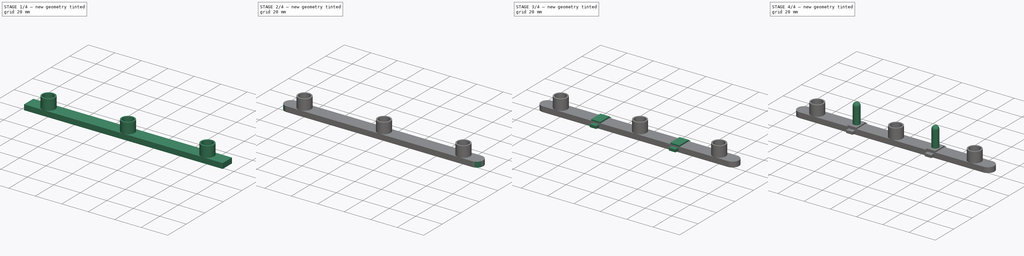
[diagram: build sequence overview — one tinted view per stage of 4, left to right]
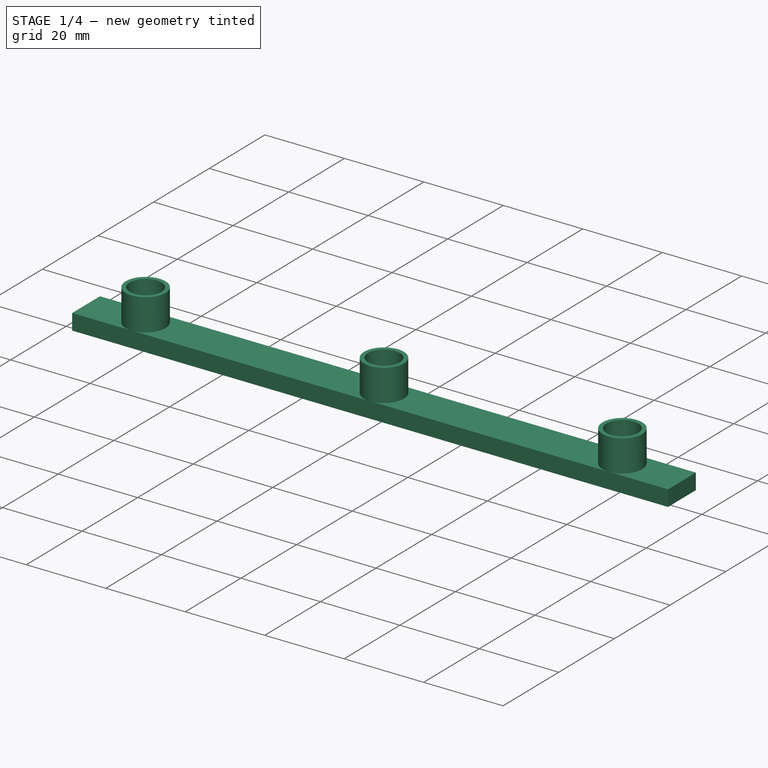
[diagram: stage 1 of 4 — iso view after this stage's code; geometry added in this stage tinted green]
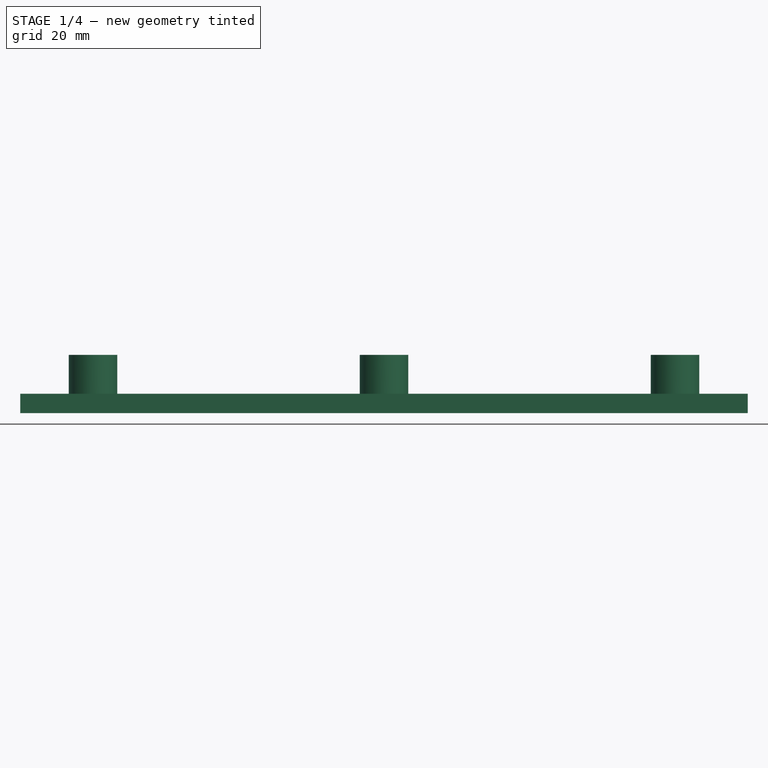
[diagram: stage 1 of 4 — front view after this stage's code; geometry added in this stage tinted green]
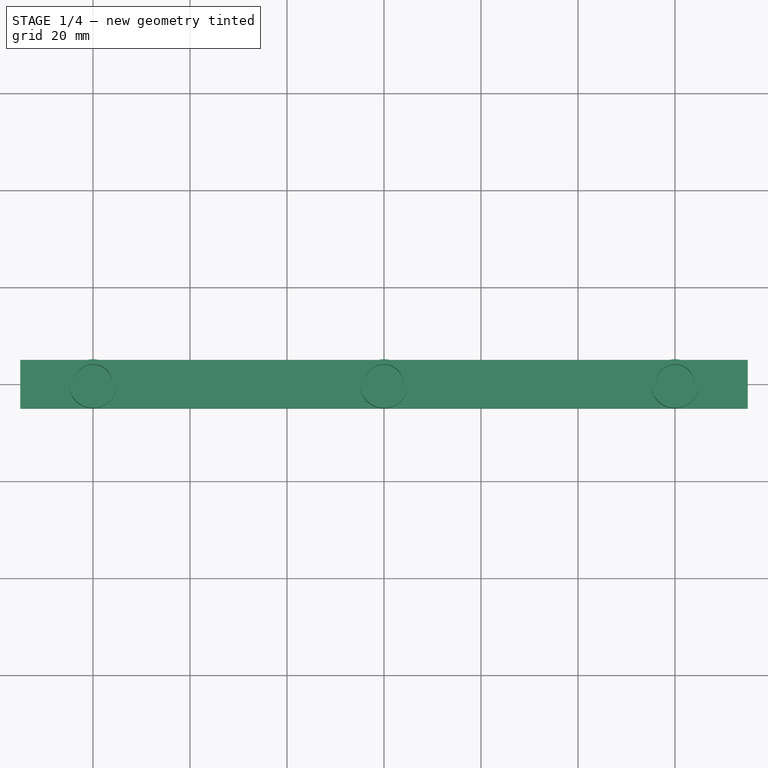
[diagram: stage 1 of 4 — top view after this stage's code; geometry added in this stage tinted green]
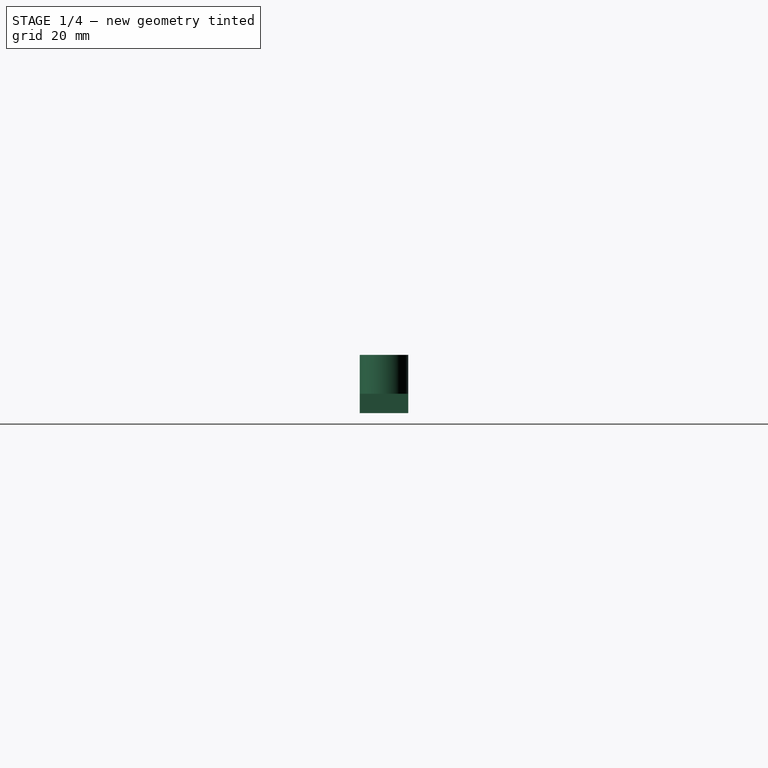
[diagram: stage 1 of 4 — right view after this stage's code; geometry added in this stage tinted green]
FCSTD DOCUMENT  (FreeCAD 0.20R29603 (Git))
Label: LaserCoolersPanel
License: All rights reserved
LicenseURL: http://en.wikipedia.org/wiki/All_rights_reserved
objects: Sketcher::SketchObject×7, PartDesign::Pad×6, PartDesign::Fillet×2, PartDesign::Pocket×1, PartDesign::Body×1
note: 26 computed .brp shape members not serialized (recipe doc carries the construction recipe); baked Part::Feature solids carry a one-line shape summary decoded from their .brp

FEATURE [Sketcher::SketchObject] Sketch
  FullyConstrained = true
  MapMode = 5
  Support = -> [XY_Plane]
  sketch-geometry (5):
    g0: LineSegment StartX=-75 StartY=5 StartZ=0 EndX=-75 EndY=-5 EndZ=0
    g1: LineSegment StartX=-75 StartY=-5 StartZ=0 EndX=75 EndY=-5 EndZ=0
    g2: LineSegment StartX=75 StartY=-5 StartZ=0 EndX=75 EndY=5 EndZ=0
    g3: LineSegment StartX=75 StartY=5 StartZ=0 EndX=-75 EndY=5 EndZ=0
    g4: GeomPoint X=0 Y=0 Z=0
  constraints (12):
    c: Coincident(g0,g1)
    c: Coincident(g1,g2)
    c: Coincident(g2,g3)
    c: Coincident(g3,g0)
    c: Horizontal(g1)
    c: Horizontal(g3)
    c: Vertical(g0)
    c: Vertical(g2)
    c: Symmetric(g1,g0,g4)
    c: Coincident(g4,g-1)
    c: DistanceX(g3,g3) = 150
    c: DistanceY(g0,g0) = 10
FEATURE [PartDesign::Pad] Pad
  Direction = (0,0,1)
  Length = 4
  Length2 = 10
  Profile = -> Sketch
  ReferenceAxis = -> Sketch [N_Axis]
  Type = 0
FEATURE [Sketcher::SketchObject] Sketch001
  FullyConstrained = true
  MapMode = 5
  Placement = pos=(0,0,4) rot=(0,0,1;0rad)
  Support = -> [Pad]
  sketch-geometry (6):
    g0: Circle CenterX=0 CenterY=0 CenterZ=0 NormalX=0 NormalY=0 NormalZ=1 AngleXU=0 Radius=5
    g1: Circle CenterX=0 CenterY=0 CenterZ=0 NormalX=0 NormalY=0 NormalZ=1 AngleXU=0 Radius=4
    g2: Circle CenterX=60 CenterY=0 CenterZ=0 NormalX=0 NormalY=0 NormalZ=1 AngleXU=0 Radius=5
    g3: Circle CenterX=60 CenterY=0 CenterZ=0 NormalX=0 NormalY=0 NormalZ=1 AngleXU=0 Radius=4
    g4: Circle CenterX=-60 CenterY=0 CenterZ=0 NormalX=0 NormalY=0 NormalZ=1 AngleXU=0 Radius=5
    g5: Circle CenterX=-60 CenterY=0 CenterZ=0 NormalX=0 NormalY=0 NormalZ=1 AngleXU=0 Radius=4
  constraints (13):
    c: Coincident(g0,g-1)
    c: Coincident(g1,g0)
    c: Coincident(g3,g2)
    c: PointOnObject(g4,g-1)
    c: Coincident(g5,g4)
    c: Symmetric(g2,g4,g-2)
    c: Equal(g4,g2)
    c: Equal(g2,g0)
    c: Diameter(g0) = 10
    c: Equal(g5,g1)
    c: Equal(g1,g3)
    c: Diameter(g1) = 8
    c: DistanceX(g4,g0) = 60
FEATURE [PartDesign::Pad] Pad001
  BaseFeature = -> Pad
  Direction = (0,0,1)
  Length = 8
  Length2 = 10
  Profile = -> Sketch001
  ReferenceAxis = -> Sketch001 [N_Axis]
  Type = 0
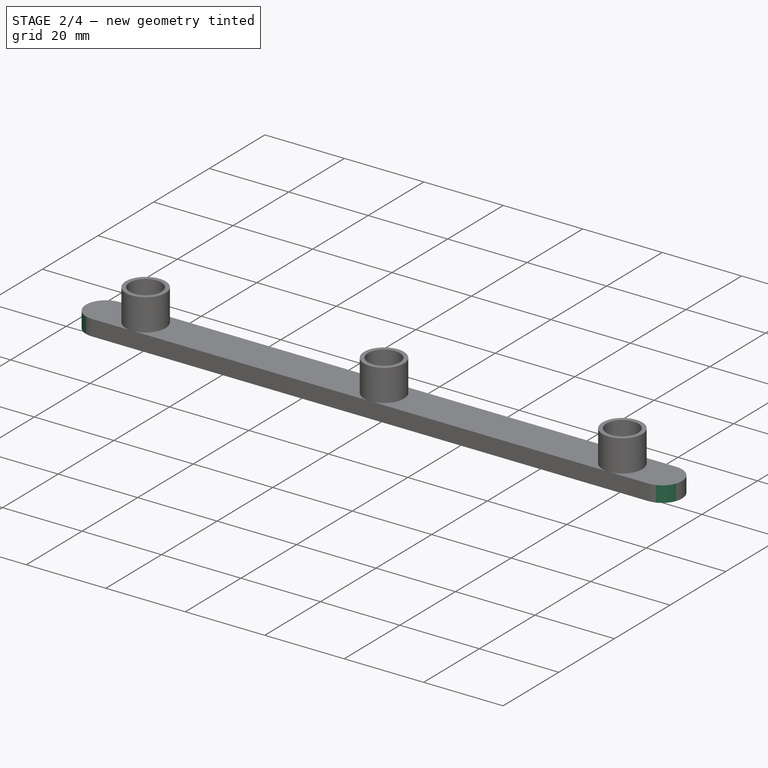
[diagram: stage 2 of 4 — iso view after this stage's code; geometry added in this stage tinted green]
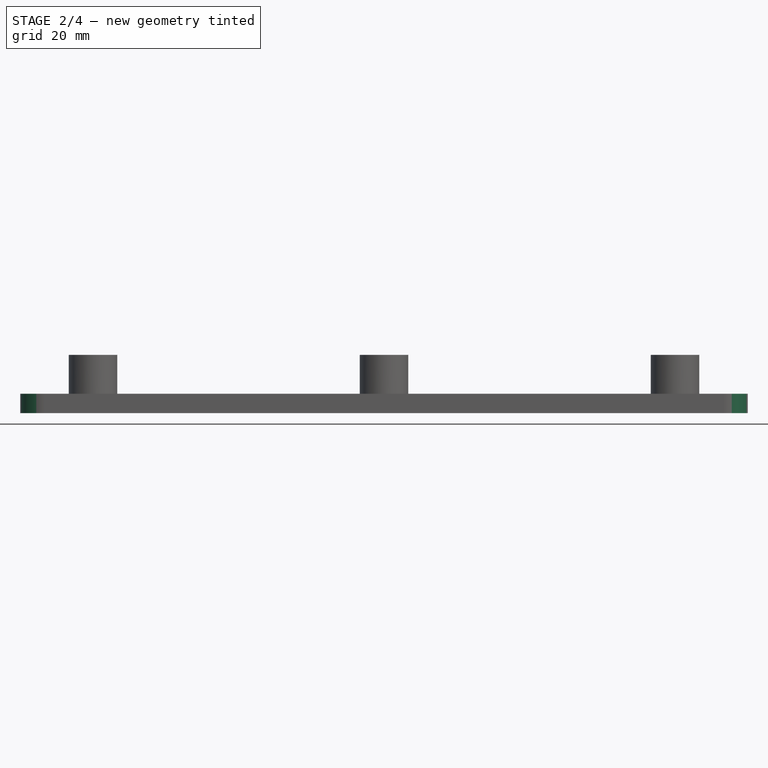
[diagram: stage 2 of 4 — front view after this stage's code; geometry added in this stage tinted green]
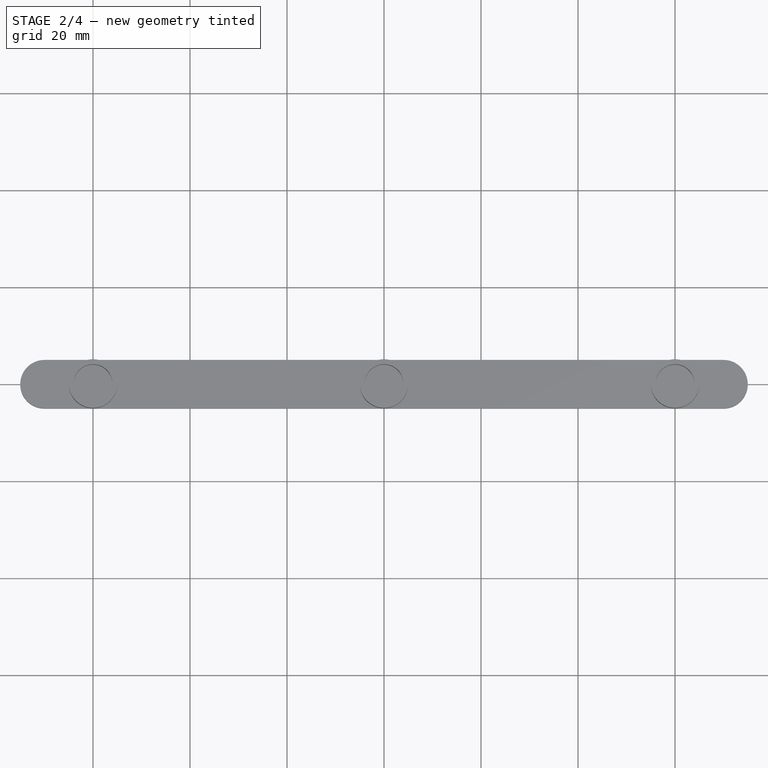
[diagram: stage 2 of 4 — top view after this stage's code; geometry added in this stage tinted green]
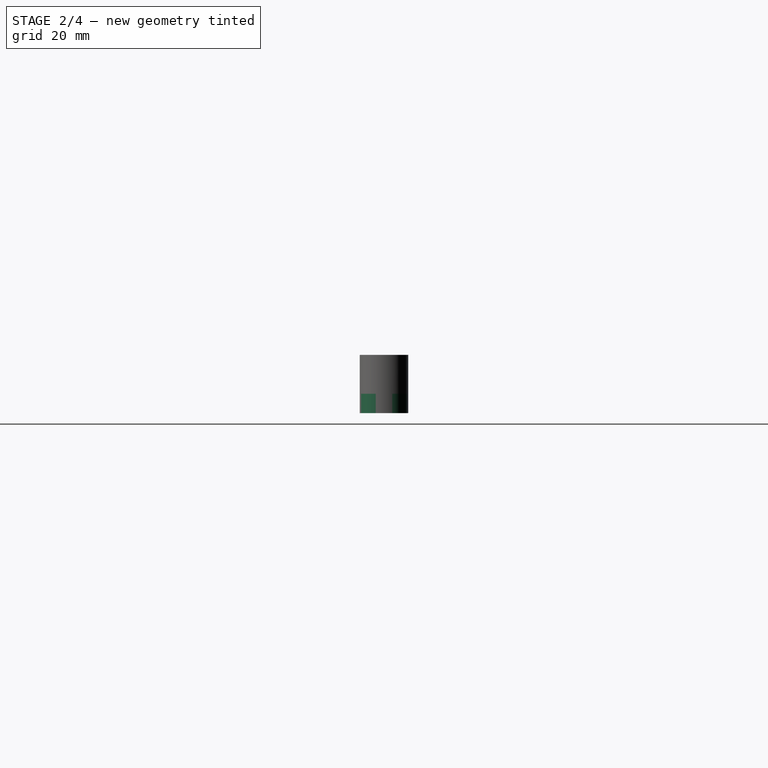
[diagram: stage 2 of 4 — right view after this stage's code; geometry added in this stage tinted green]
FEATURE [PartDesign::Fillet] Fillet
  Base = -> Pad001 [Edge1,Edge2,Edge5,Edge11]
  BaseFeature = -> Pad001
  Radius = 4.99
  SupportTransform = false
  UseAllEdges = false
FEATURE [Sketcher::SketchObject] Sketch002
  FullyConstrained = true
  MapMode = 5
  Placement = pos=(0,0,0) rot=(1,0,0;3.14159rad)
  Support = -> [Fillet]
  sketch-geometry (10):
    g0: LineSegment StartX=-70.75 StartY=1.25 StartZ=0 EndX=-70.75 EndY=-1.25 EndZ=0
    g1: LineSegment StartX=-70.75 StartY=-1.25 StartZ=0 EndX=-65.25 EndY=-1.25 EndZ=0
    g2: LineSegment StartX=-65.25 StartY=-1.25 StartZ=0 EndX=-65.25 EndY=1.25 EndZ=0
    g3: LineSegment StartX=-65.25 StartY=1.25 StartZ=0 EndX=-70.75 EndY=1.25 EndZ=0
    g4: GeomPoint X=-68 Y=0 Z=0
    g5: LineSegment StartX=70.75 StartY=1.25 StartZ=0 EndX=70.75 EndY=-1.25 EndZ=0
    g6: LineSegment StartX=70.75 StartY=-1.25 StartZ=0 EndX=65.25 EndY=-1.25 EndZ=0
    g7: LineSegment StartX=65.25 StartY=-1.25 StartZ=0 EndX=65.25 EndY=1.25 EndZ=0
    g8: LineSegment StartX=65.25 StartY=1.25 StartZ=0 EndX=70.75 EndY=1.25 EndZ=0
    g9: GeomPoint X=68 Y=0 Z=0
  constraints (25):
    c: Coincident(g0,g1)
    c: Coincident(g1,g2)
    c: Coincident(g2,g3)
    c: Coincident(g3,g0)
    c: Horizontal(g1)
    c: Horizontal(g3)
    c: Vertical(g0)
    c: Vertical(g2)
    c: Symmetric(g1,g0,g4)
    c: PointOnObject(g4,g-1)
    c: DistanceX(g3,g3) = 5.5
    c: DistanceY(g2,g2) = 2.5
    c: Coincident(g5,g6)
    c: Coincident(g6,g7)
    c: Coincident(g7,g8)
    c: Coincident(g8,g5)
    c: Horizontal(g6)
    c: Horizontal(g8)
    c: Vertical(g5)
    c: Vertical(g7)
    c: Symmetric(g6,g5,g9)
    c: Equal(g8,g3)
    c: Equal(g7,g2)
    c: Symmetric(g4,g9,g-2)
    c: DistanceX(g4,g-1) = 68
FEATURE [PartDesign::Pocket] Pocket
  BaseFeature = -> Fillet
  Direction = (0,0,1)
  Length = 3.5
  Length2 = 5
  Profile = -> Sketch002
  ReferenceAxis = -> Sketch002 [N_Axis]
  Type = 0
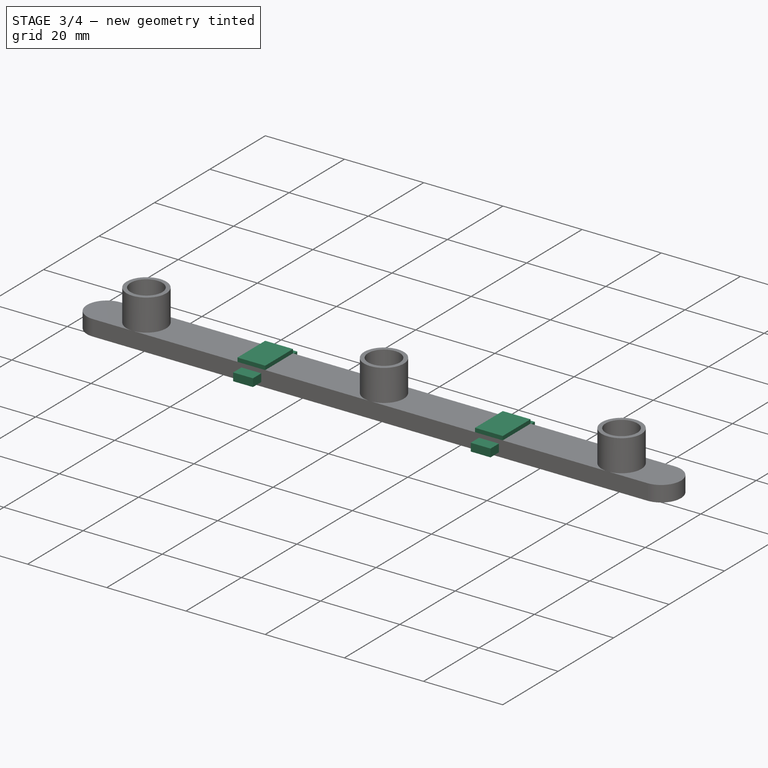
[diagram: stage 3 of 4 — iso view after this stage's code; geometry added in this stage tinted green]
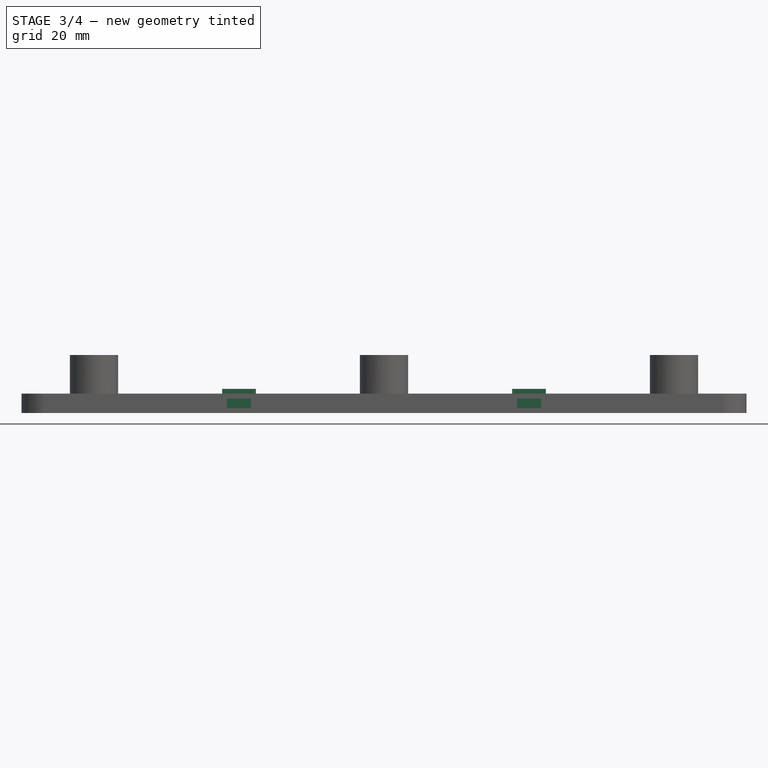
[diagram: stage 3 of 4 — front view after this stage's code; geometry added in this stage tinted green]
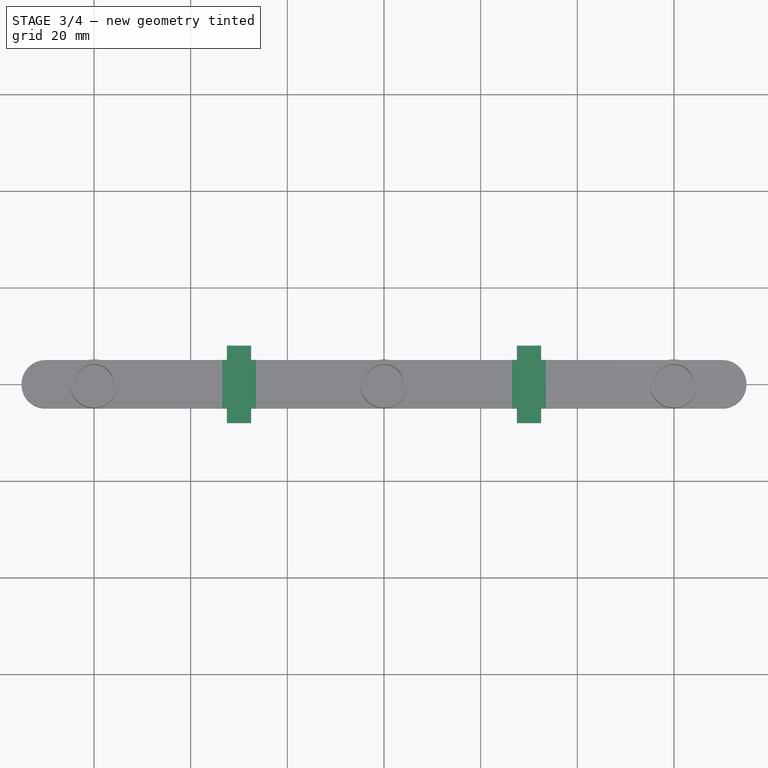
[diagram: stage 3 of 4 — top view after this stage's code; geometry added in this stage tinted green]
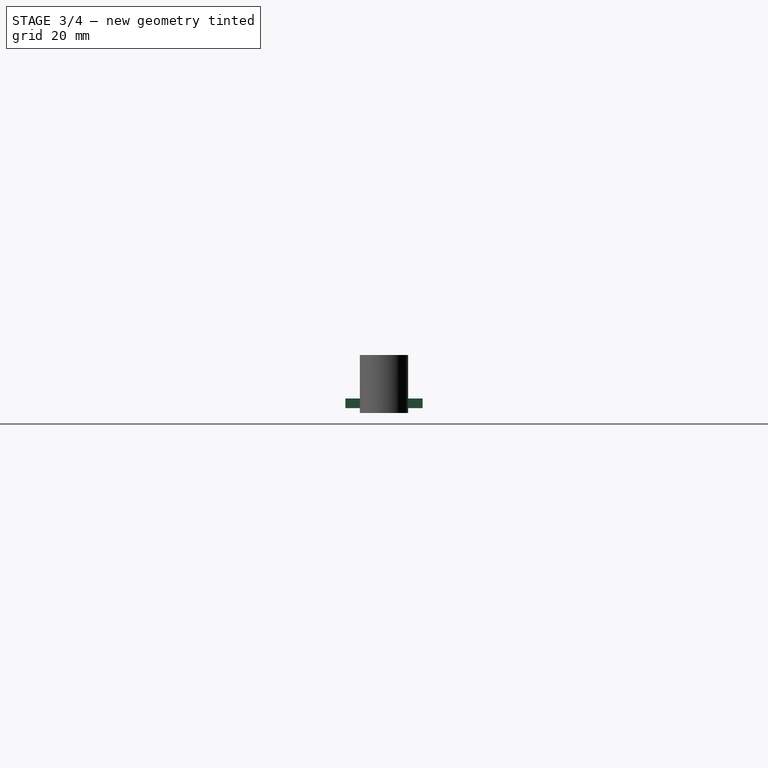
[diagram: stage 3 of 4 — right view after this stage's code; geometry added in this stage tinted green]
FEATURE [Sketcher::SketchObject] Sketch004
  FullyConstrained = true
  MapMode = 5
  Placement = pos=(0,5,0) rot=(0,0.707107,0.707107;3.14159rad)
  Support = -> [Pocket]
  sketch-geometry (10):
    g0: LineSegment StartX=-32.5 StartY=3 StartZ=0 EndX=-32.5 EndY=1 EndZ=0
    g1: LineSegment StartX=-32.5 StartY=1 StartZ=0 EndX=-27.5 EndY=1 EndZ=0
    g2: LineSegment StartX=-27.5 StartY=1 StartZ=0 EndX=-27.5 EndY=3 EndZ=0
    g3: LineSegment StartX=-27.5 StartY=3 StartZ=0 EndX=-32.5 EndY=3 EndZ=0
    g4: GeomPoint X=-30 Y=2 Z=0
    g5: LineSegment StartX=32.5 StartY=1 StartZ=0 EndX=32.5 EndY=3 EndZ=0
    g6: LineSegment StartX=32.5 StartY=3 StartZ=0 EndX=27.5 EndY=3 EndZ=0
    g7: LineSegment StartX=27.5 StartY=3 StartZ=0 EndX=27.5 EndY=1 EndZ=0
    g8: LineSegment StartX=27.5 StartY=1 StartZ=0 EndX=32.5 EndY=1 EndZ=0
    g9: GeomPoint X=30 Y=2 Z=0
  constraints (25):
    c: Coincident(g0,g1)
    c: Coincident(g1,g2)
    c: Coincident(g2,g3)
    c: Coincident(g3,g0)
    c: Horizontal(g1)
    c: Horizontal(g3)
    c: Vertical(g0)
    c: Vertical(g2)
    c: Symmetric(g1,g0,g4)
    c: Coincident(g5,g6)
    c: Coincident(g6,g7)
    c: Coincident(g7,g8)
    c: Coincident(g8,g5)
    c: Horizontal(g6)
    c: Horizontal(g8)
    c: Vertical(g5)
    c: Vertical(g7)
    c: Symmetric(g6,g5,g9)
    c: Symmetric(g9,g4,g-2)
    c: Equal(g6,g3)
    c: Equal(g2,g7)
    c: DistanceY(g0,g0) = 2
    c: DistanceX(g3,g3) = 5
    c: DistanceY(g-1,g1) = 1
    c: DistanceX(g4,g-1) = 30
FEATURE [Sketcher::SketchObject] Sketch005
  FullyConstrained = true
  MapMode = 5
  Placement = pos=(0,-5,0) rot=(1,0,0;1.5708rad)
  Support = -> [Pocket]
  sketch-geometry (10):
    g0: LineSegment StartX=-32.5 StartY=3 StartZ=0 EndX=-32.5 EndY=1 EndZ=0
    g1: LineSegment StartX=-32.5 StartY=1 StartZ=0 EndX=-27.5 EndY=1 EndZ=0
    g2: LineSegment StartX=-27.5 StartY=1 StartZ=0 EndX=-27.5 EndY=3 EndZ=0
    g3: LineSegment StartX=-27.5 StartY=3 StartZ=0 EndX=-32.5 EndY=3 EndZ=0
    g4: GeomPoint X=-30 Y=2 Z=0
    g5: LineSegment StartX=32.5 StartY=1 StartZ=0 EndX=32.5 EndY=3 EndZ=0
    g6: LineSegment StartX=32.5 StartY=3 StartZ=0 EndX=27.5 EndY=3 EndZ=0
    g7: LineSegment StartX=27.5 StartY=3 StartZ=0 EndX=27.5 EndY=1 EndZ=0
    g8: LineSegment StartX=27.5 StartY=1 StartZ=0 EndX=32.5 EndY=1 EndZ=0
    g9: GeomPoint X=30 Y=2 Z=0
  constraints (25):
    c: Coincident(g0,g1)
    c: Coincident(g1,g2)
    c: Coincident(g2,g3)
    c: Coincident(g3,g0)
    c: Horizontal(g1)
    c: Horizontal(g3)
    c: Vertical(g0)
    c: Vertical(g2)
    c: Symmetric(g1,g0,g4)
    c: Coincident(g5,g6)
    c: Coincident(g6,g7)
    c: Coincident(g7,g8)
    c: Coincident(g8,g5)
    c: Horizontal(g6)
    c: Horizontal(g8)
    c: Vertical(g5)
    c: Vertical(g7)
    c: Symmetric(g6,g5,g9)
    c: Symmetric(g9,g4,g-2)
    c: Equal(g6,g3)
    c: Equal(g2,g7)
    c: DistanceY(g0,g0) = 2
    c: DistanceX(g3,g3) = 5
    c: DistanceY(g-1,g1) = 1
    c: DistanceX(g4,g-1) = 30
FEATURE [PartDesign::Pad] Pad002
  BaseFeature = -> Pocket
  Direction = (0,1,-2e-16)
  Length = 3
  Length2 = 10
  Profile = -> Sketch004
  ReferenceAxis = -> Sketch004 [N_Axis]
  Type = 0
FEATURE [PartDesign::Pad] Pad003
  BaseFeature = -> Pad002
  Direction = (0,-1,2e-16)
  Length = 3
  Length2 = 10
  Profile = -> Sketch005
  ReferenceAxis = -> Sketch005 [N_Axis]
  Type = 0
FEATURE [Sketcher::SketchObject] Sketch006
  FullyConstrained = true
  MapMode = 5
  Placement = pos=(0,0,4) rot=(0,0,1;0rad)
  Support = -> [Pad003]
  sketch-geometry (10):
    g0: LineSegment StartX=-33.5 StartY=5 StartZ=0 EndX=-33.5 EndY=-5 EndZ=0
    g1: LineSegment StartX=-33.5 StartY=-5 StartZ=0 EndX=-26.5 EndY=-5 EndZ=0
    g2: LineSegment StartX=-26.5 StartY=-5 StartZ=0 EndX=-26.5 EndY=5 EndZ=0
    g3: LineSegment StartX=-26.5 StartY=5 StartZ=0 EndX=-33.5 EndY=5 EndZ=0
    g4: GeomPoint X=-30 Y=0 Z=0
    g5: LineSegment StartX=26.5 StartY=-5 StartZ=0 EndX=26.5 EndY=5 EndZ=0
    g6: LineSegment StartX=26.5 StartY=5 StartZ=0 EndX=33.5 EndY=5 EndZ=0
    g7: LineSegment StartX=33.5 StartY=5 StartZ=0 EndX=33.5 EndY=-5 EndZ=0
    g8: LineSegment StartX=33.5 StartY=-5 StartZ=0 EndX=26.5 EndY=-5 EndZ=0
    g9: GeomPoint X=30 Y=0 Z=0
  constraints (25):
    c: Coincident(g0,g1)
    c: Coincident(g1,g2)
    c: Coincident(g2,g3)
    c: Coincident(g3,g0)
    c: Horizontal(g1)
    c: Horizontal(g3)
    c: Vertical(g0)
    c: Vertical(g2)
    c: Symmetric(g1,g0,g4)
    c: PointOnObject(g4,g-1)
    c: DistanceY(g0,g0) = 10
    c: DistanceX(g1,g1) = 7
    c: Coincident(g5,g6)
    c: Coincident(g6,g7)
    c: Coincident(g7,g8)
    c: Coincident(g8,g5)
    c: Horizontal(g6)
    c: Horizontal(g8)
    c: Vertical(g5)
    c: Vertical(g7)
    c: Symmetric(g6,g5,g9)
    c: Equal(g6,g3)
    c: Equal(g2,g5)
    c: Symmetric(g9,g4,g-2)
    c: DistanceX(g4,g-1) = 30
FEATURE [PartDesign::Pad] Pad004
  BaseFeature = -> Pad003
  Direction = (0,0,1)
  Length = 1
  Length2 = 10
  Profile = -> Sketch006
  ReferenceAxis = -> Sketch006 [N_Axis]
  Type = 0
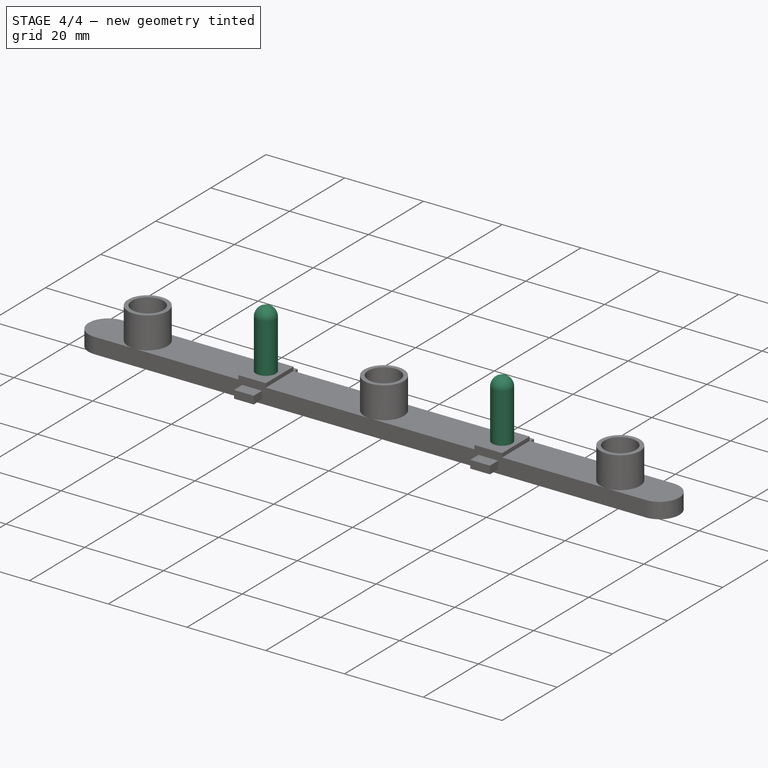
[diagram: stage 4 of 4 — iso view after this stage's code; geometry added in this stage tinted green]
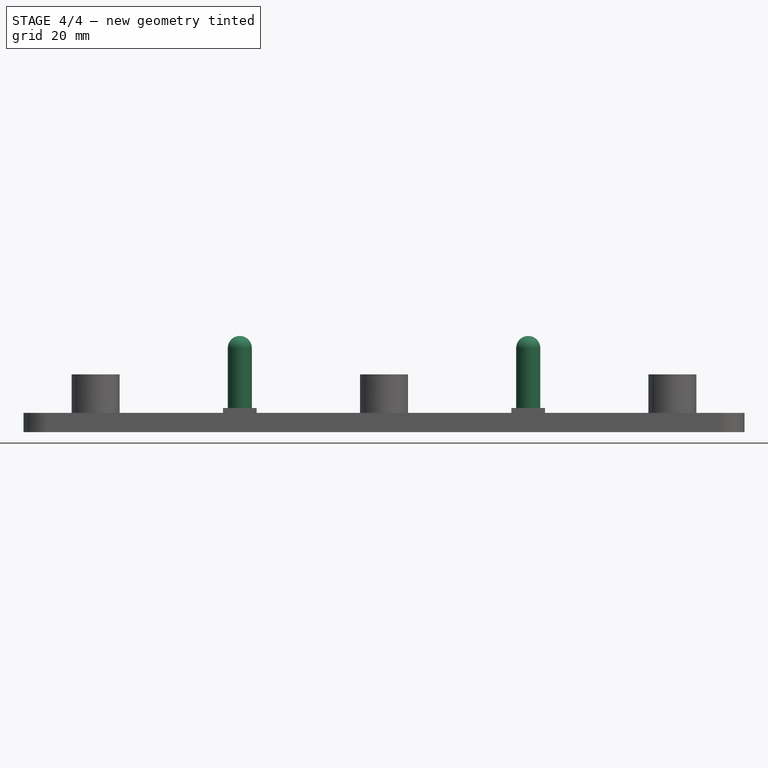
[diagram: stage 4 of 4 — front view after this stage's code; geometry added in this stage tinted green]
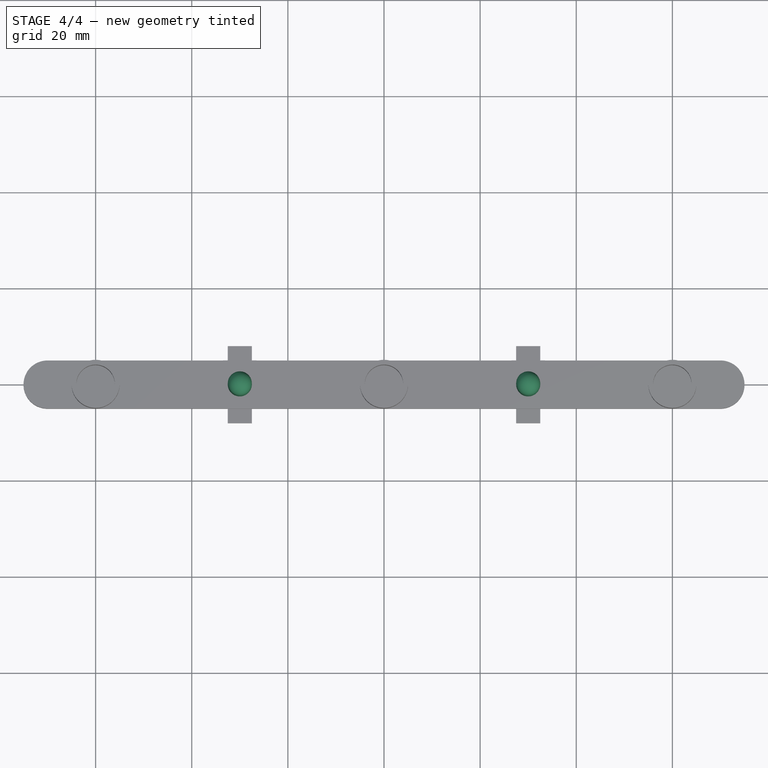
[diagram: stage 4 of 4 — top view after this stage's code; geometry added in this stage tinted green]
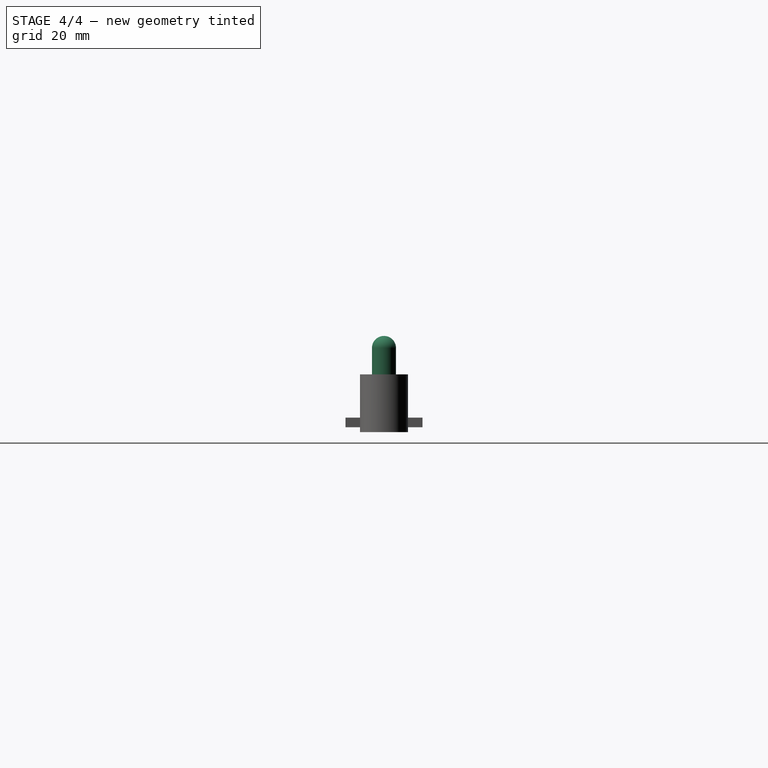
[diagram: stage 4 of 4 — right view after this stage's code; geometry added in this stage tinted green]
FEATURE [Sketcher::SketchObject] Sketch008
  FullyConstrained = true
  MapMode = 5
  Placement = pos=(0,0,5) rot=(0,0,1;0rad)
  Support = -> [Pad004]
  sketch-geometry (2):
    g0: Circle CenterX=-30 CenterY=0 CenterZ=0 NormalX=0 NormalY=0 NormalZ=1 AngleXU=0 Radius=2.5
    g1: Circle CenterX=30 CenterY=0 CenterZ=0 NormalX=0 NormalY=0 NormalZ=1 AngleXU=0 Radius=2.5
  constraints (5):
    c: PointOnObject(g0,g-1)
    c: Diameter(g0) = 5
    c: Symmetric(g1,g0,g-2)
    c: Diameter(g1) = 5
    c: DistanceX(g0,g-1) = 30
FEATURE [PartDesign::Pad] Pad005
  BaseFeature = -> Pad004
  Direction = (0,0,1)
  Length = 15
  Length2 = 10
  Profile = -> Sketch008
  ReferenceAxis = -> Sketch008 [N_Axis]
  Type = 0
FEATURE [PartDesign::Fillet] Fillet001
  Base = -> Pad005 [Edge153,Edge156]
  BaseFeature = -> Pad005
  Radius = 2.49
  SupportTransform = false
  UseAllEdges = false
FEATURE [PartDesign::Body] Body
  Group = -> [Sketch,Pad,Sketch001,Pad001,Fillet,Sketch002,Pocket,Sketch004,Sketch005,Pad002,Pad003,Sketch006,Pad004,Sketch008,Pad005,Fillet001]
  Origin = -> Origin
  Tip = -> Fillet001
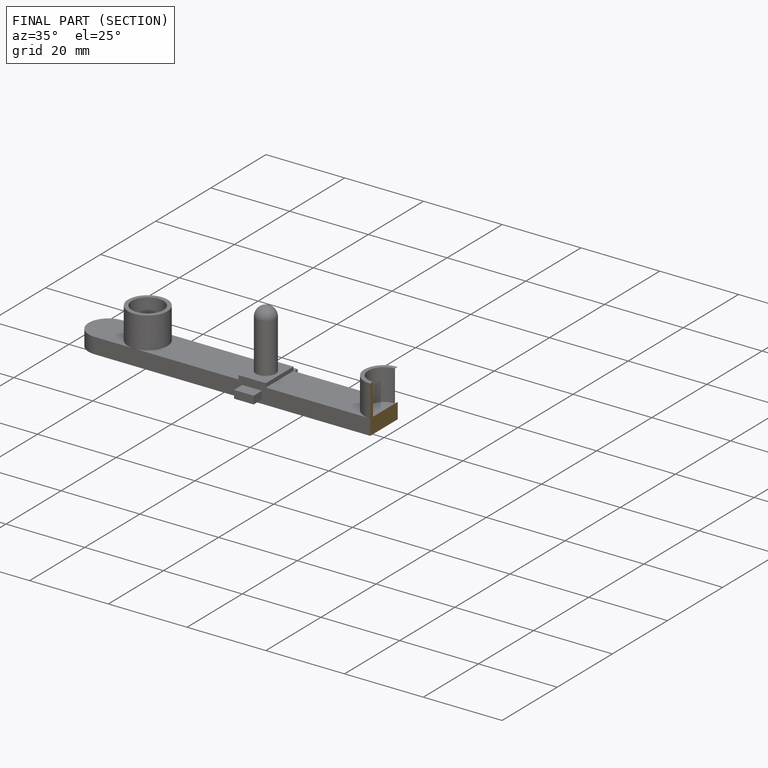
[diagram: finished part — half-section view (interior)]
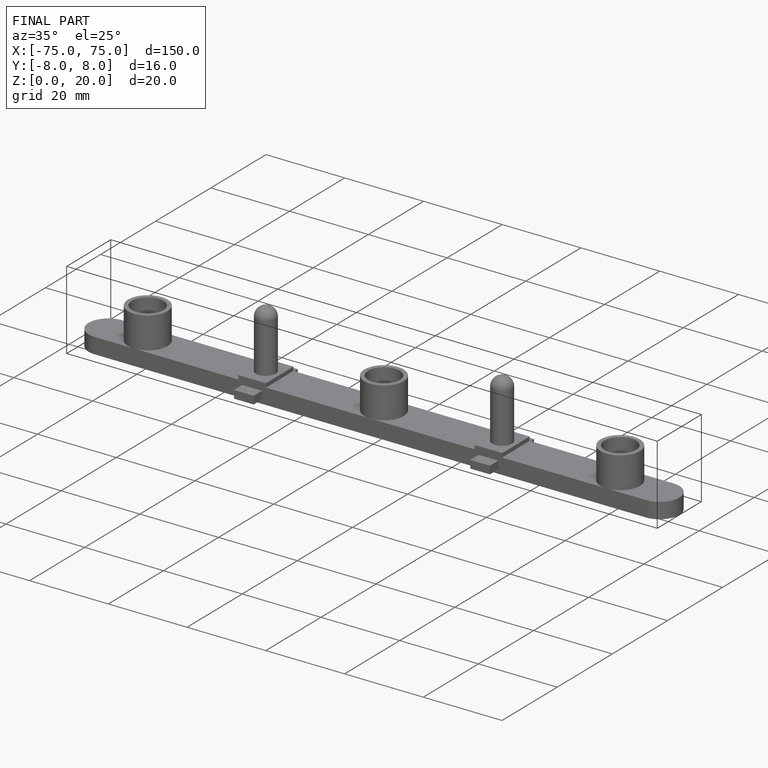
[diagram: finished part — iso view with bounding-box wireframe]
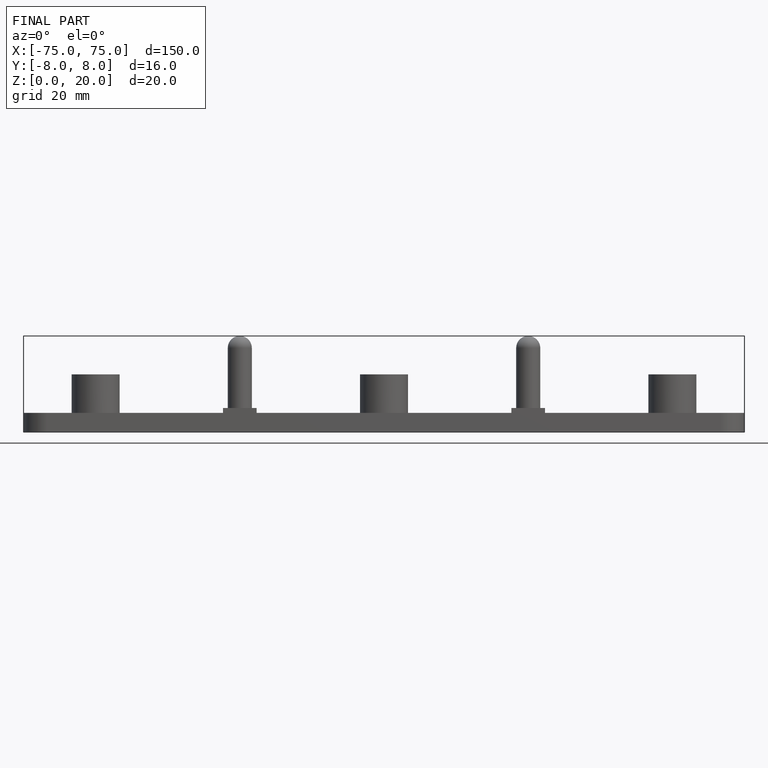
[diagram: finished part — front view with bounding-box wireframe]
